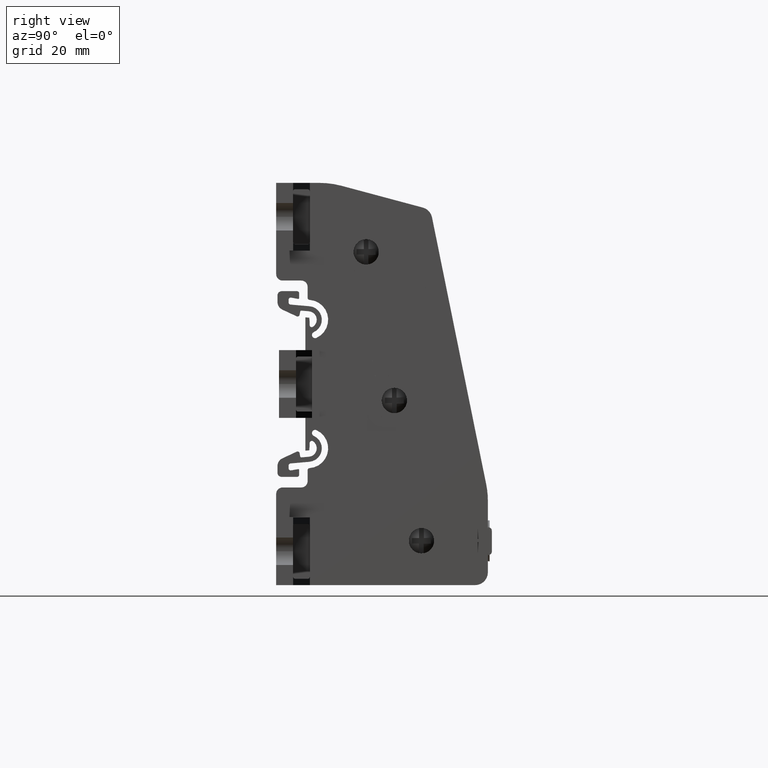
[diagram: clean part render]
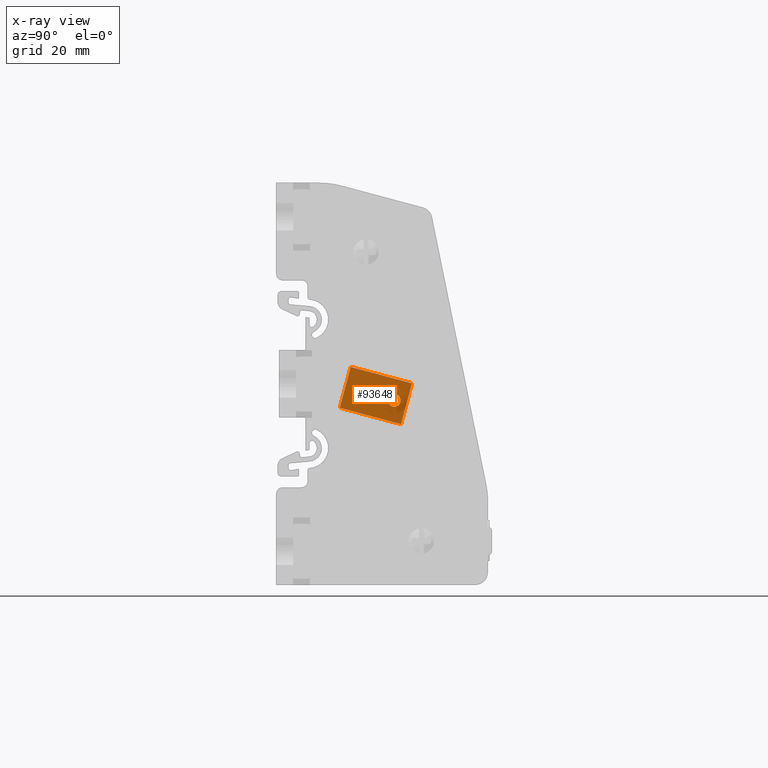
[diagram: x-ray — body ghosted, one internal face saturated and labeled with its STEP entity id]
A machine part, right view, then the same camera in x-ray: the body is ghosted and one INTERNAL B-rep face — a face not visible from any outside direction — is saturated and labeled: STEP entity #93648.
In plain terms, the highlighted planar face has unit normal (1, -0, 0).
Its self-contained STEP definition (entity closure, byte-faithful):
#6947 = VERTEX_POINT ( 'NONE', #82344 ) ;
#6966 = VERTEX_POINT ( 'NONE', #82304 ) ;
#14542 = VERTEX_POINT ( 'NONE', #72881 ) ;
#14553 = VERTEX_POINT ( 'NONE', #72890 ) ;
#14595 = VERTEX_POINT ( 'NONE', #72992 ) ;
#14658 = VERTEX_POINT ( 'NONE', #73060 ) ;
#14721 = ORIENTED_EDGE ( 'NONE', *, *, #90687, .F. ) ;
#14745 = ORIENTED_EDGE ( 'NONE', *, *, #92675, .F. ) ;
#14773 = ORIENTED_EDGE ( 'NONE', *, *, #91173, .T. ) ;
#24388 = FACE_OUTER_BOUND ( 'NONE', #38371, .T. ) ;
#24393 = DIRECTION ( 'NONE',  ( 1.000000000000000000, -8.477182886534923400E-015, 5.841704221959285400E-015 ) ) ;
#24401 = FACE_BOUND ( 'NONE', #76359, .T. ) ;
#24405 = DIRECTION ( 'NONE',  ( 8.477182886534923400E-015, 1.000000000000000000, 0.0000000000000000000 ) ) ;
#24415 = PLANE ( 'NONE',  #56495 ) ;
#24418 = CARTESIAN_POINT ( 'NONE',  ( -57.26994303252543300, 257.0775244099162900, 7.190579439410822900 ) ) ;
#33984 = DIRECTION ( 'NONE',  ( -4.704334850106582600E-015, 1.000000000000000000, 0.0000000000000000000 ) ) ;
#33995 = CARTESIAN_POINT ( 'NONE',  ( -57.26994303252529100, 267.3745390998706200, -0.7448782332659544800 ) ) ;
#34033 = DIRECTION ( 'NONE',  ( -1.000000000000000000, -6.753906400332736800E-015, -1.722328977353829100E-015 ) ) ;
#38371 = EDGE_LOOP ( 'NONE', ( #51364, #51393, #14773, #51428 ) ) ;
#40908 = LINE ( 'NONE', #40923, #73147 ) ;
#40923 = CARTESIAN_POINT ( 'NONE',  ( -57.26994303252543300, 271.5664118042517400, 3.308293762871090200 ) ) ;
#40955 = LINE ( 'NONE', #40997, #73071 ) ;
#40959 = DIRECTION ( 'NONE',  ( 3.469446951953607500E-015, -0.2588190451023981200, -0.9659258262891010600 ) ) ;
#40997 = CARTESIAN_POINT ( 'NONE',  ( -57.26994303252543300, 257.0811384289429500, 7.189611065931205600 ) ) ;
#41084 = DIRECTION ( 'NONE',  ( 0.0000000000000000000, 0.9659258262890340100, -0.2588190451026485300 ) ) ;
#41149 = CARTESIAN_POINT ( 'NONE',  ( -57.26994303252528300, 271.5664118042517400, 3.308293762871090200 ) ) ;
#41237 = LINE ( 'NONE', #41149, #73219 ) ;
#41240 = DIRECTION ( 'NONE',  ( 0.0000000000000000000, -0.2588190451026485300, -0.9659258262890340100 ) ) ;
#41377 = DIRECTION ( 'NONE',  ( 0.0000000000000000000, 0.9659258262890340100, -0.2588190451026485300 ) ) ;
#41390 = CARTESIAN_POINT ( 'NONE',  ( -57.26994303252539700, 268.9782213532252500, -6.350964500019242300 ) ) ;
#41448 = LINE ( 'NONE', #41390, #73211 ) ;
#41652 = DIRECTION ( 'NONE',  ( -4.704334850106582600E-015, 1.000000000000000000, 0.0000000000000000000 ) ) ;
#41656 = CARTESIAN_POINT ( 'NONE',  ( -57.26994303252529100, 267.3745390998706200, -0.7448782332659544800 ) ) ;
#41675 = DIRECTION ( 'NONE',  ( -1.000000000000000000, -6.753906400332736800E-015, -1.722328977353829100E-015 ) ) ;
#51364 = ORIENTED_EDGE ( 'NONE', *, *, #91120, .F. ) ;
#51393 = ORIENTED_EDGE ( 'NONE', *, *, #91135, .T. ) ;
#51428 = ORIENTED_EDGE ( 'NONE', *, *, #91195, .F. ) ;
#56495 = AXIS2_PLACEMENT_3D ( 'NONE', #24418, #24393, #24405 ) ;
#64330 = AXIS2_PLACEMENT_3D ( 'NONE', #33995, #34033, #33984 ) ;
#64360 = CIRCLE ( 'NONE', #64330, 1.475000000000004100 ) ;
#72464 = AXIS2_PLACEMENT_3D ( 'NONE', #41656, #41675, #41652 ) ;
#72506 = CIRCLE ( 'NONE', #72464, 1.475000000000004100 ) ;
#72881 = CARTESIAN_POINT ( 'NONE',  ( -57.26994303252536200, 268.9782213532252500, -6.350964500019242300 ) ) ;
#72890 = CARTESIAN_POINT ( 'NONE',  ( -57.26994303252539700, 254.4929479779192700, -2.469647196959920500 ) ) ;
#72992 = CARTESIAN_POINT ( 'NONE',  ( -57.26994303252533300, 271.5664118042518000, 3.308293762871308300 ) ) ;
#73060 = CARTESIAN_POINT ( 'NONE',  ( -57.26994303252544000, 257.0811384289432300, 7.189611065931109700 ) ) ;
#73071 = VECTOR ( 'NONE', #40959, 1000.000000000000200 ) ;
#73147 = VECTOR ( 'NONE', #41084, 1000.000000000000000 ) ;
#73211 = VECTOR ( 'NONE', #41377, 1000.000000000000000 ) ;
#73219 = VECTOR ( 'NONE', #41240, 1000.000000000000000 ) ;
#76359 = EDGE_LOOP ( 'NONE', ( #14745, #14721 ) ) ;
#82304 = CARTESIAN_POINT ( 'NONE',  ( -57.26994303252528300, 265.8995390998706500, -0.7448782332659572600 ) ) ;
#82344 = CARTESIAN_POINT ( 'NONE',  ( -57.26994303252529800, 268.8495390998706400, -0.7448782332659544800 ) ) ;
#90687 = EDGE_CURVE ( 'NONE', #6966, #6947, #72506, .T. ) ;
#91120 = EDGE_CURVE ( 'NONE', #14658, #14553, #40955, .T. ) ;
#91135 = EDGE_CURVE ( 'NONE', #14658, #14595, #40908, .T. ) ;
#91173 = EDGE_CURVE ( 'NONE', #14595, #14542, #41237, .T. ) ;
#91195 = EDGE_CURVE ( 'NONE', #14553, #14542, #41448, .T. ) ;
#92675 = EDGE_CURVE ( 'NONE', #6947, #6966, #64360, .T. ) ;
#93648 = ADVANCED_FACE ( 'NONE', ( #24388, #24401 ), #24415, .F. ) ;